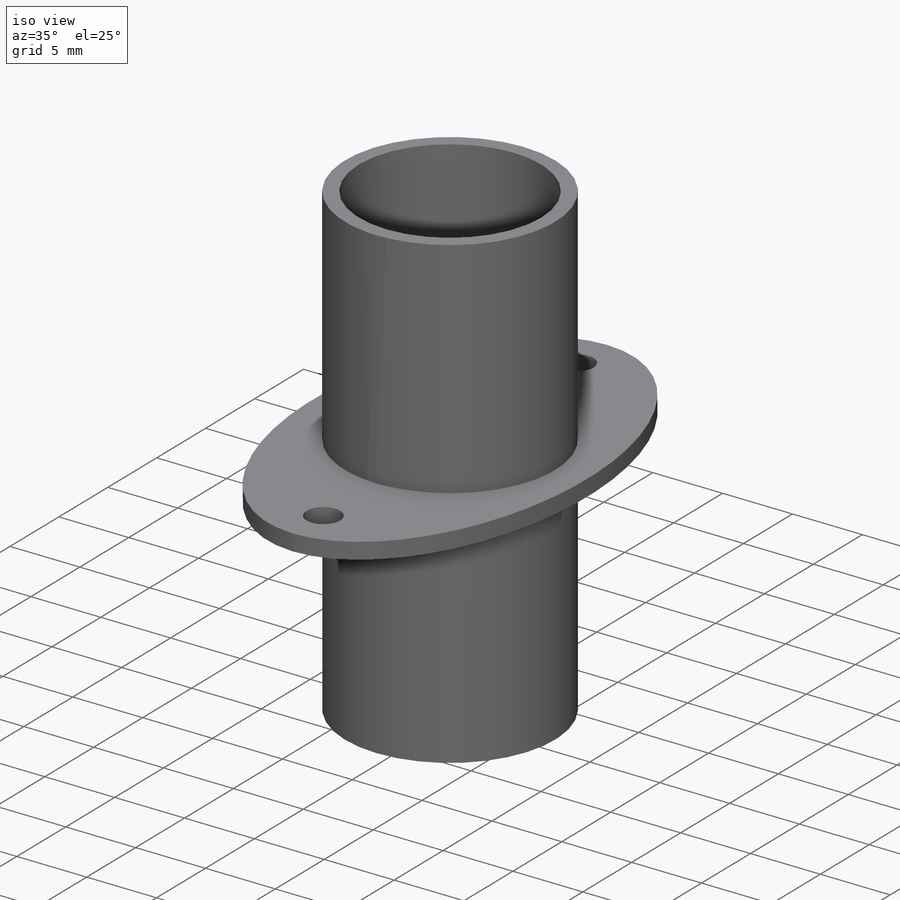
[diagram: iso view]
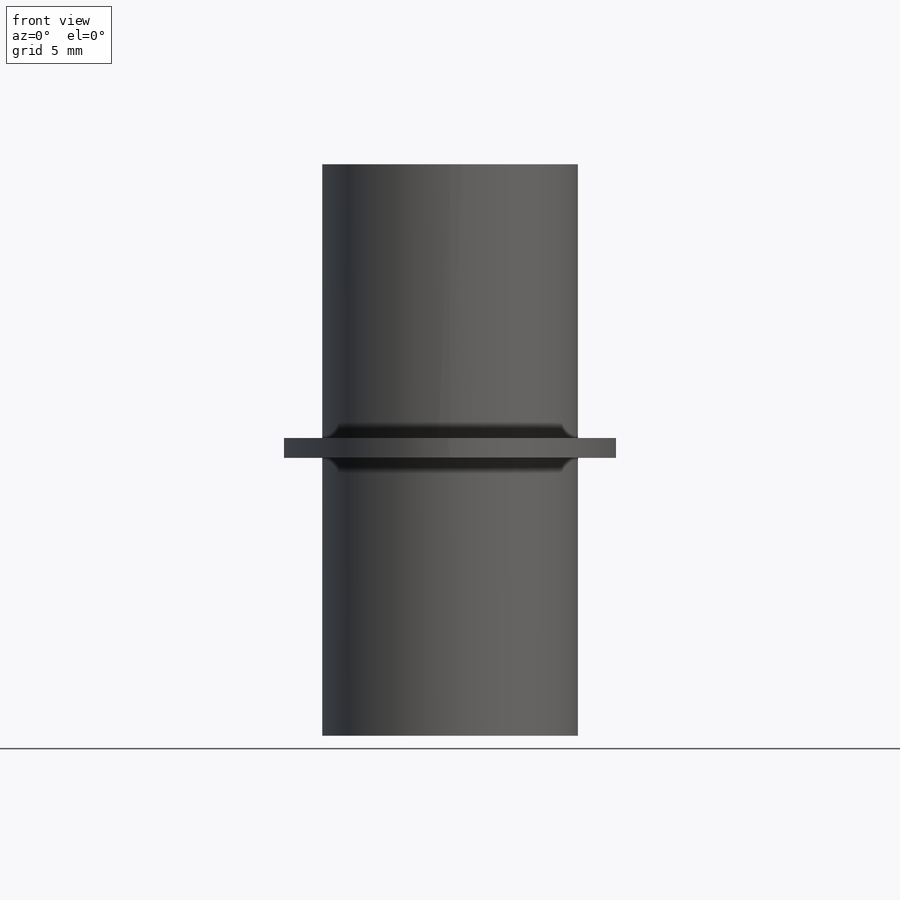
[diagram: front view]
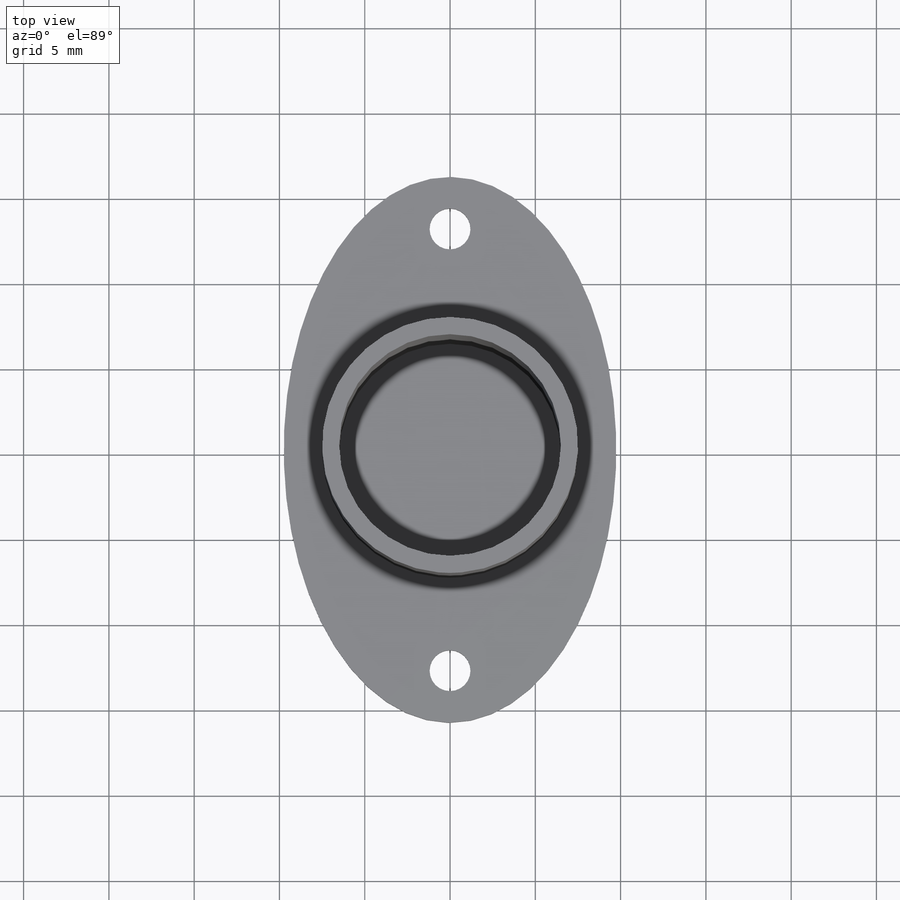
[diagram: top view]
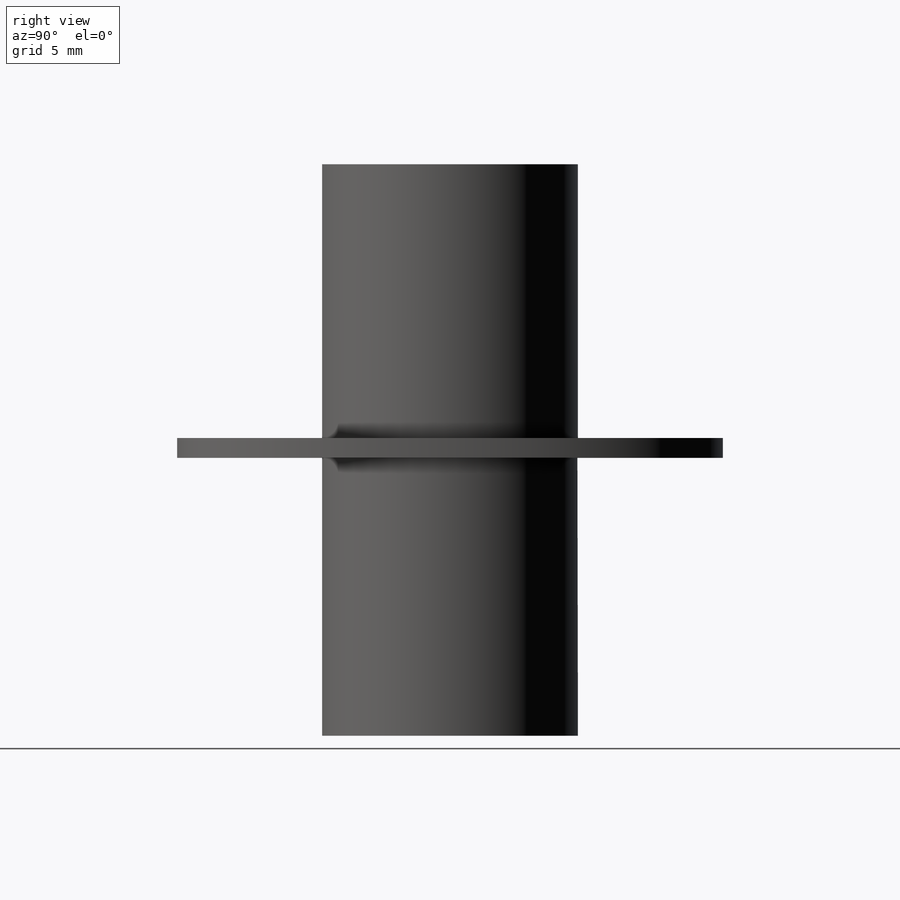
[diagram: right view]
SOLIDWORKS PART (.sldprt)
format: sldprt  version: not decoded by parser v0  size: 116,736 bytes
history: native  units: mm
features: sketch x3, extrude x3, material x1, shell x1 (+16 scaffold rows collapsed)
feature tree (24):
  scaffold x16  (default folders/planes/origin — collapsed)
  material  "Material <not specified>"
  sketch  "Sketch1"  dims[D1=12.95mm D2=12.95mm]
  extrude  "Extrude1"  Depth=1.16mm
  sketch  "Sketch2"  dims[D1=15.0mm]
  extrude  "Extrude2"  Depth=16.05mm
  sketch  "Sketch3"  dims[D1=15.0mm]
  extrude  "Extrude3"  Depth=16.29mm
  shell  "Shell1"  Thickness=1mm
decode coverage: 7 of 7 modeling features carry decoded parameters
note: suppression state not decoded; provenance and decode notes live in map.json
